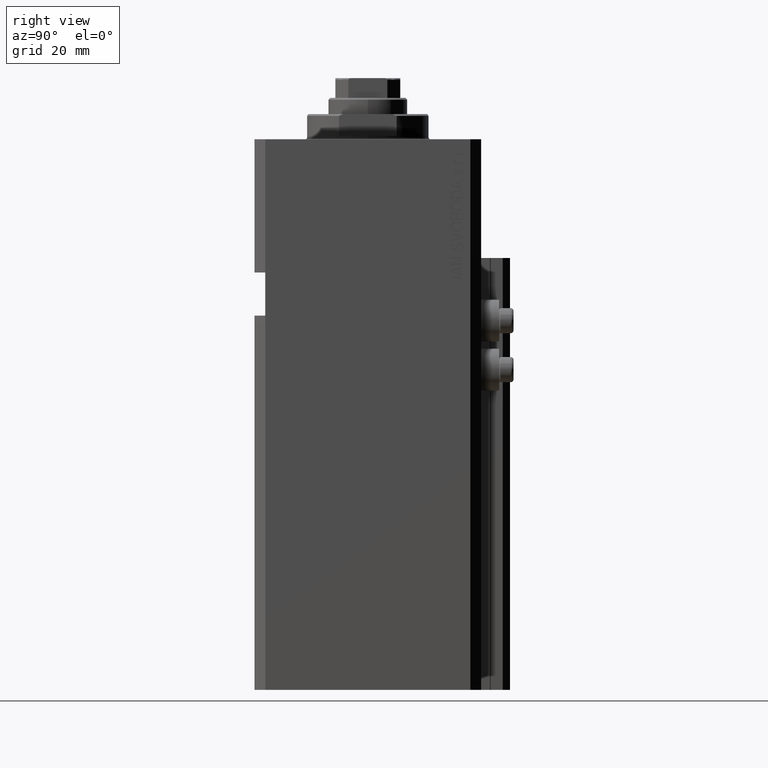
[diagram: clean part render]
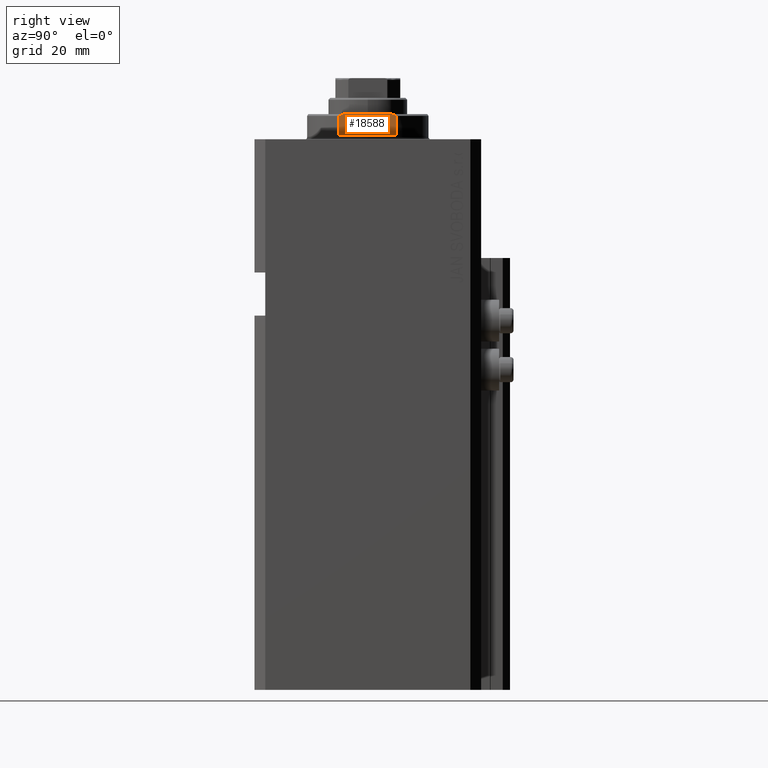
[diagram: same view with one face highlighted and labeled with its STEP entity id]
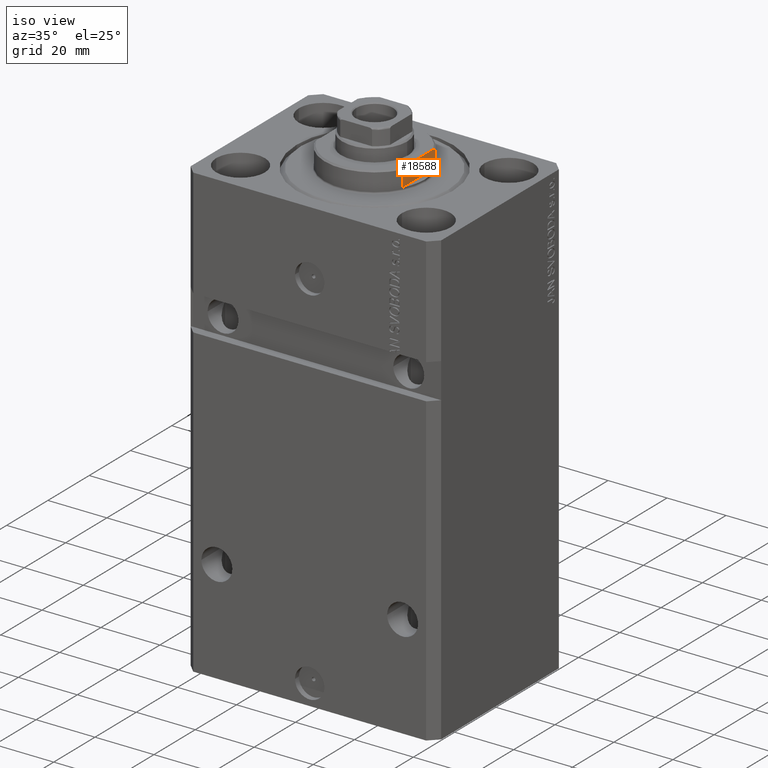
[diagram: same view with one face highlighted and labeled with its STEP entity id]
A machine part, right view. The second image highlights one B-rep face of the part: STEP entity #18588.
A second angle (iso view) of the same face is appended — the face is thin or edge-on in the first view.
In plain terms, the highlighted planar face has unit normal (-1, 0, 0).
Its self-contained STEP definition (entity closure, byte-faithful):
#738 = CARTESIAN_POINT ( 'NONE',  ( -15.00000000000000000, -7.629305121525828071, -6.674444648693746984 ) ) ;
#953 = CARTESIAN_POINT ( 'NONE',  ( -15.00000000000000000, -42.42640687119285303, -1.000000000000000000 ) ) ;
#1658 = ORIENTED_EDGE ( 'NONE', *, *, #8274, .T. ) ;
#1803 = EDGE_CURVE ( 'NONE', #16687, #34474, #15989, .T. ) ;
#2638 = CARTESIAN_POINT ( 'NONE',  ( -15.00000000000000000, -8.000000000000001776, -6.500000000000014211 ) ) ;
#4250 = VECTOR ( 'NONE', #6388, 1000.000000000000000 ) ;
#5042 = DIRECTION ( 'NONE',  ( -0.000000000000000000, -0.000000000000000000, 1.000000000000000000 ) ) ;
#5587 = VERTEX_POINT ( 'NONE', #19879 ) ;
#6045 = CARTESIAN_POINT ( 'NONE',  ( -15.00000000000000000, 7.628315461082496363, -6.674910371255315056 ) ) ;
#6388 = DIRECTION ( 'NONE',  ( -0.000000000000000000, -1.000000000000000000, -0.000000000000000000 ) ) ;
#6596 = DIRECTION ( 'NONE',  ( 0.000000000000000000, 0.000000000000000000, -1.000000000000000000 ) ) ;
#6756 = VERTEX_POINT ( 'NONE', #2638 ) ;
#7543 = LINE ( 'NONE', #40863, #40642 ) ;
#8274 = EDGE_CURVE ( 'NONE', #23202, #38120, #7543, .T. ) ;
#8769 = CARTESIAN_POINT ( 'NONE',  ( -14.99999999999999645, -6.873863542433817031, -7.000000000000000000 ) ) ;
#11169 = ORIENTED_EDGE ( 'NONE', *, *, #11573, .F. ) ;
#11398 = CARTESIAN_POINT ( 'NONE',  ( -14.99999999999999645, 8.000000000000003553, -1.000000000000000000 ) ) ;
#11573 = EDGE_CURVE ( 'NONE', #34474, #5587, #43587, .T. ) ;
#12873 = VECTOR ( 'NONE', #6596, 1000.000000000000000 ) ;
#12877 = CARTESIAN_POINT ( 'NONE',  ( -15.00000000000000000, 8.000000000000001776, -6.500000000000013323 ) ) ;
#15989 = LINE ( 'NONE', #23753, #41674 ) ;
#16528 = CARTESIAN_POINT ( 'NONE',  ( -14.99999999999999645, 6.873863542433817031, -7.000000000000000000 ) ) ;
#16687 = VERTEX_POINT ( 'NONE', #18642 ) ;
#17004 = EDGE_CURVE ( 'NONE', #5587, #6756, #40636, .T. ) ;
#18588 = ADVANCED_FACE ( 'NONE', ( #23809 ), #23320, .F. ) ;
#18642 = CARTESIAN_POINT ( 'NONE',  ( -15.00000000000000000, 8.000000000000001776, -6.500000000000013323 ) ) ;
#18994 = CARTESIAN_POINT ( 'NONE',  ( -15.00000000000000000, -8.000000000000001776, -6.500000000000014211 ) ) ;
#19597 = CARTESIAN_POINT ( 'NONE',  ( -14.99999999999999645, -6.873863542433817031, -7.000000000000000000 ) ) ;
#19879 = CARTESIAN_POINT ( 'NONE',  ( -14.99999999999999645, -8.000000000000003553, -1.000000000000000000 ) ) ;
#20168 = DIRECTION ( 'NONE',  ( 1.000000000000000000, 0.000000000000000000, 0.000000000000000000 ) ) ;
#20281 = EDGE_CURVE ( 'NONE', #38120, #6756, #23370, .T. ) ;
#20977 = CARTESIAN_POINT ( 'NONE',  ( -15.00000000000000000, -42.42640687119285303, -1.000000000000000000 ) ) ;
#23202 = VERTEX_POINT ( 'NONE', #37241 ) ;
#23320 = PLANE ( 'NONE',  #31575 ) ;
#23370 = B_SPLINE_CURVE_WITH_KNOTS ( 'NONE', 3,
 ( #8769, #45258, #738, #18994 ),
 .UNSPECIFIED., .F., .F.,
 ( 4, 4 ),
 ( 0.04875332532859021767, 0.04998905627745620778 ),
 .UNSPECIFIED. ) ;
#23753 = CARTESIAN_POINT ( 'NONE',  ( -15.00000000000000000, 8.000000000000001776, -7.000000000000000000 ) ) ;
#23809 = FACE_OUTER_BOUND ( 'NONE', #26419, .T. ) ;
#24048 = CARTESIAN_POINT ( 'NONE',  ( -15.00000000000000000, 7.253126193285960532, -6.842000017654668476 ) ) ;
#25553 = CARTESIAN_POINT ( 'NONE',  ( -15.00000000000000000, -8.000000000000001776, -7.000000000000000000 ) ) ;
#26419 = EDGE_LOOP ( 'NONE', ( #38168, #1658, #39965, #42838, #11169, #32548 ) ) ;
#31575 = AXIS2_PLACEMENT_3D ( 'NONE', #953, #20168, #42058 ) ;
#32548 = ORIENTED_EDGE ( 'NONE', *, *, #1803, .F. ) ;
#34474 = VERTEX_POINT ( 'NONE', #11398 ) ;
#37241 = CARTESIAN_POINT ( 'NONE',  ( -14.99999999999999645, 6.873863542433817031, -7.000000000000000000 ) ) ;
#37460 = DIRECTION ( 'NONE',  ( -0.000000000000000000, -1.000000000000000000, -0.000000000000000000 ) ) ;
#38120 = VERTEX_POINT ( 'NONE', #19597 ) ;
#38168 = ORIENTED_EDGE ( 'NONE', *, *, #43578, .T. ) ;
#39965 = ORIENTED_EDGE ( 'NONE', *, *, #20281, .T. ) ;
#40636 = LINE ( 'NONE', #25553, #12873 ) ;
#40642 = VECTOR ( 'NONE', #37460, 1000.000000000000000 ) ;
#40863 = CARTESIAN_POINT ( 'NONE',  ( -15.00000000000000000, -42.42640687119285303, -7.000000000000000000 ) ) ;
#41674 = VECTOR ( 'NONE', #5042, 1000.000000000000000 ) ;
#42058 = DIRECTION ( 'NONE',  ( 0.000000000000000000, 0.000000000000000000, -1.000000000000000000 ) ) ;
#42670 = B_SPLINE_CURVE_WITH_KNOTS ( 'NONE', 3,
 ( #12877, #6045, #24048, #16528 ),
 .UNSPECIFIED., .F., .F.,
 ( 4, 4 ),
 ( 0.03336039268696996268, 0.03459498301323797598 ),
 .UNSPECIFIED. ) ;
#42838 = ORIENTED_EDGE ( 'NONE', *, *, #17004, .F. ) ;
#43578 = EDGE_CURVE ( 'NONE', #16687, #23202, #42670, .T. ) ;
#43587 = LINE ( 'NONE', #20977, #4250 ) ;
#45258 = CARTESIAN_POINT ( 'NONE',  ( -15.00000000000000000, -7.254193676168162241, -6.841555306644511170 ) ) ;